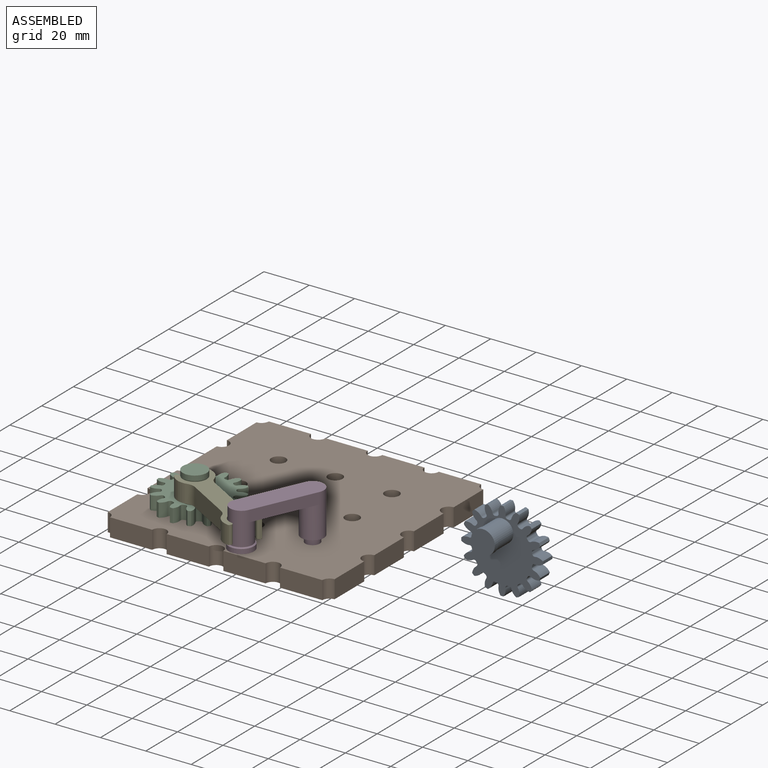
[diagram: assembled view]
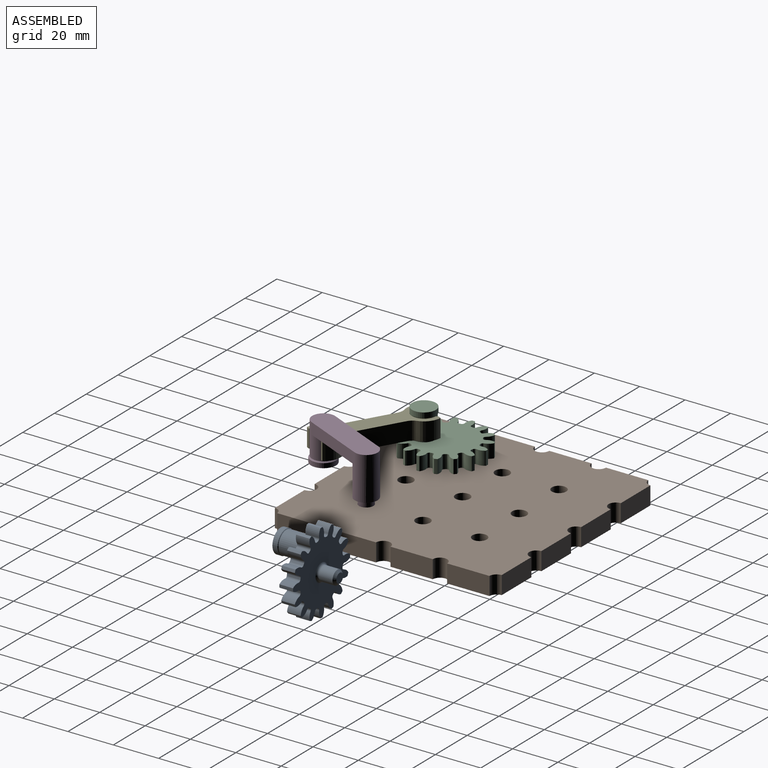
[diagram: assembled view, second angle]
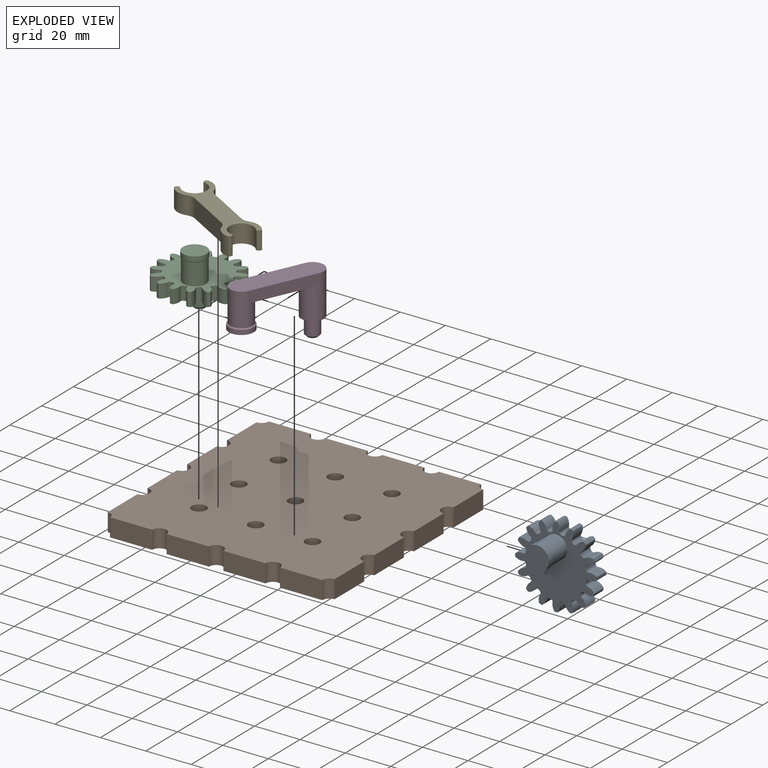
[diagram: exploded view]
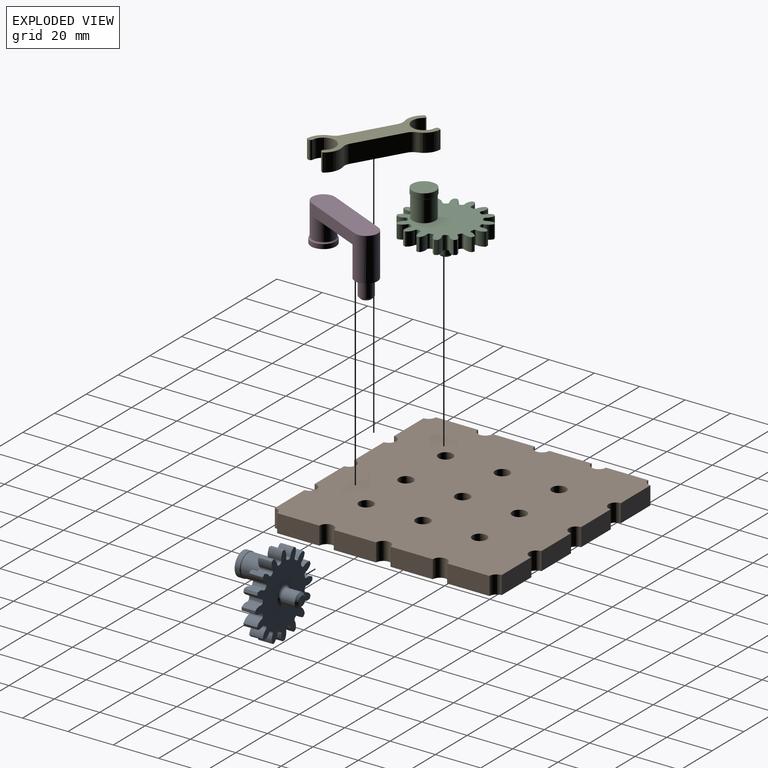
[diagram: exploded view, second angle]
ASSEMBLY  parts=5 mates=4
PART A: 106 faces, bbox 36x26x36 mm
  f0: cylinder r=13.5mm len=6mm, axis (0,1,0), area 3.6mm2, adj f16,f17,f22,f96
  f1: cylinder r=13.5mm len=6mm, axis (0,1,0), area 3.6mm2, adj f16,f17,f91,f97
  f2: cylinder r=13.5mm len=6mm, axis (0,1,0), area 3.6mm2, adj f16,f17,f86,f92
  f3: cylinder r=13.5mm len=6mm, axis (0,1,0), area 3.6mm2, adj f16,f17,f81,f87
  f4: cylinder r=13.5mm len=6mm, axis (0,1,0), area 3.6mm2, adj f16,f17,f76,f82
  f5: cylinder r=13.5mm len=6mm, axis (0,1,0), area 3.6mm2, adj f16,f17,f71,f77
  f6: cylinder r=13.5mm len=6mm, axis (0,1,0), area 3.6mm2, adj f16,f17,f66,f72
  f7: cylinder r=13.5mm len=6mm, axis (0,1,0), area 3.6mm2, adj f16,f17,f61,f67
  f8: cylinder r=13.5mm len=6mm, axis (0,1,0), area 3.6mm2, adj f16,f17,f56,f62
  f9: cylinder r=13.5mm len=6mm, axis (0,1,0), area 3.6mm2, adj f16,f17,f51,f57
  f10: cylinder r=13.5mm len=6mm, axis (0,1,0), area 3.6mm2, adj f16,f17,f46,f52
  f11: cylinder r=13.5mm len=6mm, axis (0,1,0), area 3.6mm2, adj f16,f17,f41,f47
  f12: cylinder r=13.5mm len=6mm, axis (0,1,0), area 3.6mm2, adj f16,f17,f36,f42
  f13: cylinder r=13.5mm len=6mm, axis (0,1,0), area 3.6mm2, adj f16,f17,f31,f37
  f14: cylinder r=13.5mm len=6mm, axis (0,1,0), area 3.6mm2, adj f16,f17,f26,f32
  f15: cylinder r=13.5mm len=6mm, axis (0,1,0), area 3.6mm2, adj f16,f17,f21,f27
  f16: plane 36x36mm, normal (0,-1,0), area 699.5mm2, adj f0,f1,f2,f3,f4,f5,f6,f7
  f17: plane 36x36mm, normal (0,1,0), area 724.6mm2, adj f0,f1,f2,f3,f4,f5,f6,f7
  f18: cylinder r=4.49mm len=6mm, axis (0,1,0), area 22.5mm2, adj f16,f17,f19,f22
  f19: cylinder r=18mm len=6mm, axis (0,1,0), area 7.7mm2, adj f16,f17,f18,f20
  f20: cylinder r=4.49mm len=6mm, axis (0,1,0), area 22.5mm2, adj f16,f17,f19,f21
  f21: cylinder r=1mm len=6mm, axis (0,1,0), area 9.4mm2, adj f15,f16,f17,f20
  f22: cylinder r=1mm len=6mm, axis (0,1,0), area 9.4mm2, adj f0,f16,f17,f18
  f23: cylinder r=4.49mm len=6mm, axis (0,1,0), area 22.5mm2, adj f16,f17,f24,f27
  f24: cylinder r=18mm len=6mm, axis (0,1,0), area 7.7mm2, adj f16,f17,f23,f25
  f25: cylinder r=4.49mm len=6mm, axis (0,1,0), area 22.5mm2, adj f16,f17,f24,f26
  f26: cylinder r=1mm len=6mm, axis (0,1,0), area 9.4mm2, adj f14,f16,f17,f25
  f27: cylinder r=1mm len=6mm, axis (0,1,0), area 9.4mm2, adj f15,f16,f17,f23
  f28: cylinder r=4.49mm len=6mm, axis (0,1,0), area 22.5mm2, adj f16,f17,f29,f32
  f29: cylinder r=18mm len=6mm, axis (0,1,0), area 7.7mm2, adj f16,f17,f28,f30
  f30: cylinder r=4.49mm len=6mm, axis (0,1,0), area 22.5mm2, adj f16,f17,f29,f31
  f31: cylinder r=1mm len=6mm, axis (0,1,0), area 9.4mm2, adj f13,f16,f17,f30
  f32: cylinder r=1mm len=6mm, axis (0,1,0), area 9.4mm2, adj f14,f16,f17,f28
  f33: cylinder r=4.49mm len=6mm, axis (0,1,0), area 22.5mm2, adj f16,f17,f34,f37
  f34: cylinder r=18mm len=6mm, axis (0,1,0), area 7.7mm2, adj f16,f17,f33,f35
  f35: cylinder r=4.49mm len=6mm, axis (0,1,0), area 22.5mm2, adj f16,f17,f34,f36
  f36: cylinder r=1mm len=6mm, axis (0,1,0), area 9.4mm2, adj f12,f16,f17,f35
  f37: cylinder r=1mm len=6mm, axis (0,1,0), area 9.4mm2, adj f13,f16,f17,f33
  f38: cylinder r=4.49mm len=6mm, axis (0,1,0), area 22.5mm2, adj f16,f17,f39,f42
  f39: cylinder r=18mm len=6mm, axis (0,1,0), area 7.7mm2, adj f16,f17,f38,f40
  f40: cylinder r=4.49mm len=6mm, axis (0,1,0), area 22.5mm2, adj f16,f17,f39,f41
  f41: cylinder r=1mm len=6mm, axis (0,1,0), area 9.4mm2, adj f11,f16,f17,f40
  f42: cylinder r=1mm len=6mm, axis (0,1,0), area 9.4mm2, adj f12,f16,f17,f38
  f43: cylinder r=4.49mm len=6mm, axis (0,1,0), area 22.5mm2, adj f16,f17,f44,f47
  f44: cylinder r=18mm len=6mm, axis (0,1,0), area 7.7mm2, adj f16,f17,f43,f45
  f45: cylinder r=4.49mm len=6mm, axis (0,1,0), area 22.5mm2, adj f16,f17,f44,f46
  f46: cylinder r=1mm len=6mm, axis (0,1,0), area 9.4mm2, adj f10,f16,f17,f45
  f47: cylinder r=1mm len=6mm, axis (0,1,0), area 9.4mm2, adj f11,f16,f17,f43
  f48: cylinder r=4.49mm len=6mm, axis (0,1,0), area 22.5mm2, adj f16,f17,f49,f52
  f49: cylinder r=18mm len=6mm, axis (0,1,0), area 7.7mm2, adj f16,f17,f48,f50
  f50: cylinder r=4.49mm len=6mm, axis (0,1,0), area 22.5mm2, adj f16,f17,f49,f51
  f51: cylinder r=1mm len=6mm, axis (0,1,0), area 9.4mm2, adj f9,f16,f17,f50
  f52: cylinder r=1mm len=6mm, axis (0,1,0), area 9.4mm2, adj f10,f16,f17,f48
  f53: cylinder r=4.49mm len=6mm, axis (0,1,0), area 22.5mm2, adj f16,f17,f54,f57
  f54: cylinder r=18mm len=6mm, axis (0,1,0), area 7.7mm2, adj f16,f17,f53,f55
  f55: cylinder r=4.49mm len=6mm, axis (0,1,0), area 22.5mm2, adj f16,f17,f54,f56
  f56: cylinder r=1mm len=6mm, axis (0,1,0), area 9.4mm2, adj f8,f16,f17,f55
  f57: cylinder r=1mm len=6mm, axis (0,1,0), area 9.4mm2, adj f9,f16,f17,f53
  f58: cylinder r=4.49mm len=6mm, axis (0,1,0), area 22.5mm2, adj f16,f17,f59,f62
  f59: cylinder r=18mm len=6mm, axis (0,1,0), area 7.7mm2, adj f16,f17,f58,f60
  f60: cylinder r=4.49mm len=6mm, axis (0,1,0), area 22.5mm2, adj f16,f17,f59,f61
  f61: cylinder r=1mm len=6mm, axis (0,1,0), area 9.4mm2, adj f7,f16,f17,f60
  f62: cylinder r=1mm len=6mm, axis (0,1,0), area 9.4mm2, adj f8,f16,f17,f58
  f63: cylinder r=4.49mm len=6mm, axis (0,1,0), area 22.5mm2, adj f16,f17,f64,f67
  f64: cylinder r=18mm len=6mm, axis (0,1,0), area 7.7mm2, adj f16,f17,f63,f65
  f65: cylinder r=4.49mm len=6mm, axis (0,1,0), area 22.5mm2, adj f16,f17,f64,f66
  f66: cylinder r=1mm len=6mm, axis (0,1,0), area 9.4mm2, adj f6,f16,f17,f65
  f67: cylinder r=1mm len=6mm, axis (0,1,0), area 9.4mm2, adj f7,f16,f17,f63
  f68: cylinder r=4.49mm len=6mm, axis (0,1,0), area 22.5mm2, adj f16,f17,f69,f72
  f69: cylinder r=18mm len=6mm, axis (0,1,0), area 7.7mm2, adj f16,f17,f68,f70
  f70: cylinder r=4.49mm len=6mm, axis (0,1,0), area 22.5mm2, adj f16,f17,f69,f71
  f71: cylinder r=1mm len=6mm, axis (0,1,0), area 9.4mm2, adj f5,f16,f17,f70
  f72: cylinder r=1mm len=6mm, axis (0,1,0), area 9.4mm2, adj f6,f16,f17,f68
  f73: cylinder r=4.49mm len=6mm, axis (0,1,0), area 22.5mm2, adj f16,f17,f74,f77
  f74: cylinder r=18mm len=6mm, axis (0,1,0), area 7.7mm2, adj f16,f17,f73,f75
  f75: cylinder r=4.49mm len=6mm, axis (0,1,0), area 22.5mm2, adj f16,f17,f74,f76
  f76: cylinder r=1mm len=6mm, axis (0,1,0), area 9.4mm2, adj f4,f16,f17,f75
  f77: cylinder r=1mm len=6mm, axis (0,1,0), area 9.4mm2, adj f5,f16,f17,f73
  f78: cylinder r=4.49mm len=6mm, axis (0,1,0), area 22.5mm2, adj f16,f17,f79,f82
  f79: cylinder r=18mm len=6mm, axis (0,1,0), area 7.7mm2, adj f16,f17,f78,f80
  f80: cylinder r=4.49mm len=6mm, axis (0,1,0), area 22.5mm2, adj f16,f17,f79,f81
  f81: cylinder r=1mm len=6mm, axis (0,1,0), area 9.4mm2, adj f3,f16,f17,f80
  f82: cylinder r=1mm len=6mm, axis (0,1,0), area 9.4mm2, adj f4,f16,f17,f78
  f83: cylinder r=4.49mm len=6mm, axis (0,1,0), area 22.5mm2, adj f16,f17,f84,f87
  f84: cylinder r=18mm len=6mm, axis (0,1,0), area 7.7mm2, adj f16,f17,f83,f85
  f85: cylinder r=4.49mm len=6mm, axis (0,1,0), area 22.5mm2, adj f16,f17,f84,f86
  f86: cylinder r=1mm len=6mm, axis (0,1,0), area 9.4mm2, adj f2,f16,f17,f85
  f87: cylinder r=1mm len=6mm, axis (0,1,0), area 9.4mm2, adj f3,f16,f17,f83
  f88: cylinder r=4.49mm len=6mm, axis (0,1,0), area 22.5mm2, adj f16,f17,f89,f92
  f89: cylinder r=18mm len=6mm, axis (0,1,0), area 7.7mm2, adj f16,f17,f88,f90
  f90: cylinder r=4.49mm len=6mm, axis (0,1,0), area 22.5mm2, adj f16,f17,f89,f91
  f91: cylinder r=1mm len=6mm, axis (0,1,0), area 9.4mm2, adj f1,f16,f17,f90
  f92: cylinder r=1mm len=6mm, axis (0,1,0), area 9.4mm2, adj f2,f16,f17,f88
  f93: cylinder r=4.49mm len=6mm, axis (0,1,0), area 22.5mm2, adj f16,f17,f94,f97
  f94: cylinder r=18mm len=6mm, axis (0,1,0), area 7.7mm2, adj f16,f17,f93,f95
  f95: cylinder r=4.49mm len=6mm, axis (0,1,0), area 22.5mm2, adj f16,f17,f94,f96
  f96: cylinder r=1mm len=6mm, axis (0,1,0), area 9.4mm2, adj f0,f16,f17,f95
  f97: cylinder r=1mm len=6mm, axis (0,1,0), area 9.4mm2, adj f1,f16,f17,f93
  f98: cylinder r=3.12mm len=6.25mm, axis (0,-1,0), area 117.8mm2, adj f100,f101
  f99: plane 4.25x4.25mm, normal (0,1,0), area 14.2mm2, adj f101
  f100: torus R=4.12mm, axis (0,-1,0), area 34.4mm2, adj f17,f98
  f101: cone r=2.12mm half-angle=45deg, axis (0,-1,0), area 23.3mm2, adj f98,f99
  f102: cylinder r=5mm len=10mm, axis (0,1,0), area 298.5mm2, adj f16,f105
  f103: cylinder r=5.25mm len=10.5mm, axis (0,1,0), area 74.2mm2, adj f104,f105
  f104: plane 10.5x10.5mm, normal (0,-1,0), area 86.6mm2, adj f103
  f105: cone r=5.5mm half-angle=45deg, axis (0,-1,0), area 11.4mm2, adj f102,f103
PART B: 43 faces, bbox 100x100x8 mm
  f0: cylinder r=3.17mm len=8mm, axis (0,0,-1), area 79.8mm2, adj f1,f39,f41,f42
  f1: plane 18.65x8mm, normal (0,-1,0), area 149.2mm2, adj f0,f2,f41,f42
  f2: cylinder r=3.17mm len=8mm, axis (0,0,-1), area 39.9mm2, adj f1,f3,f41,f42
  f3: plane 18.65x8mm, normal (1,0,0), area 149.2mm2, adj f2,f4,f41,f42
  f4: cylinder r=3.17mm len=8mm, axis (0,0,-1), area 79.8mm2, adj f3,f5,f41,f42
  f5: plane 18.65x8mm, normal (1,0,0), area 149.2mm2, adj f4,f6,f41,f42
  f6: cylinder r=3.17mm len=8mm, axis (0,0,-1), area 79.8mm2, adj f5,f7,f41,f42
  f7: plane 18.65x8mm, normal (1,0,0), area 149.2mm2, adj f6,f8,f41,f42
  f8: cylinder r=3.17mm len=8mm, axis (0,0,-1), area 79.8mm2, adj f7,f9,f41,f42
  f9: plane 18.65x8mm, normal (1,0,0), area 149.2mm2, adj f8,f10,f41,f42
  f10: cylinder r=3.17mm len=8mm, axis (0,0,-1), area 39.9mm2, adj f9,f11,f41,f42
  f11: plane 18.65x8mm, normal (0,1,0), area 149.2mm2, adj f10,f12,f41,f42
  f12: cylinder r=3.17mm len=8mm, axis (0,0,-1), area 79.8mm2, adj f11,f13,f41,f42
  f13: plane 18.65x8mm, normal (0,1,0), area 149.2mm2, adj f12,f14,f41,f42
  f14: cylinder r=3.17mm len=8mm, axis (0,0,-1), area 79.8mm2, adj f13,f15,f41,f42
  f15: plane 18.65x8mm, normal (0,1,0), area 149.2mm2, adj f14,f16,f41,f42
  f16: cylinder r=3.17mm len=8mm, axis (0,0,-1), area 79.8mm2, adj f15,f17,f41,f42
  f17: plane 18.65x8mm, normal (0,1,0), area 149.2mm2, adj f16,f18,f41,f42
  f18: cylinder r=3.17mm len=8mm, axis (0,0,-1), area 39.9mm2, adj f17,f19,f41,f42
  f19: plane 18.65x8mm, normal (-1,0,0), area 149.2mm2, adj f18,f20,f41,f42
  f20: cylinder r=3.17mm len=8mm, axis (0,0,-1), area 79.8mm2, adj f19,f21,f41,f42
  f21: plane 18.65x8mm, normal (-1,0,0), area 149.2mm2, adj f20,f22,f41,f42
  f22: cylinder r=3.17mm len=8mm, axis (0,0,-1), area 79.8mm2, adj f21,f23,f41,f42
  f23: plane 18.65x8mm, normal (-1,0,0), area 149.2mm2, adj f22,f24,f41,f42
  f24: cylinder r=3.17mm len=8mm, axis (0,0,-1), area 79.8mm2, adj f23,f25,f41,f42
  f25: plane 18.65x8mm, normal (-1,0,0), area 149.2mm2, adj f24,f26,f41,f42
  f26: cylinder r=3.17mm len=8mm, axis (0,0,-1), area 39.9mm2, adj f25,f27,f41,f42
  f27: plane 18.65x8mm, normal (0,-1,0), area 149.2mm2, adj f26,f28,f41,f42
  f28: cylinder r=3.17mm len=8mm, axis (0,0,-1), area 79.8mm2, adj f27,f29,f41,f42
  f29: plane 18.65x8mm, normal (0,-1,0), area 149.2mm2, adj f28,f30,f41,f42
  f30: cylinder r=3.17mm len=8mm, axis (0,0,-1), area 79.8mm2, adj f29,f39,f41,f42
  f31: cylinder r=3.17mm len=8mm, axis (0,0,-1), area 159.6mm2, adj f41,f42
  f32: cylinder r=3.17mm len=8mm, axis (0,0,-1), area 159.6mm2, adj f41,f42
  f33: cylinder r=3.17mm len=8mm, axis (0,0,-1), area 159.6mm2, adj f41,f42
  f34: cylinder r=3.17mm len=8mm, axis (0,0,-1), area 159.6mm2, adj f41,f42
  f35: cylinder r=3.17mm len=8mm, axis (0,0,-1), area 159.6mm2, adj f41,f42
  f36: cylinder r=3.17mm len=8mm, axis (0,0,-1), area 159.6mm2, adj f41,f42
  f37: cylinder r=3.17mm len=8mm, axis (0,0,-1), area 159.6mm2, adj f41,f42
  f38: cylinder r=3.17mm len=8mm, axis (0,0,-1), area 159.6mm2, adj f41,f42
  f39: plane 18.65x8mm, normal (0,-1,0), area 149.2mm2, adj f0,f30,f41,f42
  f40: cylinder r=3.17mm len=8mm, axis (0,0,-1), area 159.6mm2, adj f41,f42
  f41: plane 100x100mm, normal (0,0,1), area 9493.3mm2, adj f0,f1,f2,f3,f4,f5,f6,f7
  f42: plane 100x100mm, normal (0,0,-1), area 9493.3mm2, adj f0,f1,f2,f3,f4,f5,f6,f7
PART C: same geometry as A
PART D: 14 faces, bbox 25.3x27x36.6 mm
  f0: cylinder r=5mm len=14.5mm, axis (0,-1,0), area 377mm2, adj f1,f2,f4,f5,f9
  f1: plane 31.03x23.49mm, normal (0,1,0), area 221.5mm2, adj f0,f2,f3,f4
  f2: plane 26.1x14.79mm, normal (-0.87,0,-0.49), area 150mm2, adj f0,f1,f3,f5
  f3: cylinder r=5mm len=19mm, axis (0,1,0), area 518.4mm2, adj f1,f2,f4,f5,f6
  f4: plane 26.1x14.79mm, normal (0.87,0,0.49), area 150mm2, adj f0,f1,f3,f5
  f5: plane 36.1x24.79mm, normal (0,-1,0), area 378.5mm2, adj f0,f2,f3,f4
  f6: plane 10x10mm, normal (0,1,0), area 25.1mm2, adj f3,f12
  f7: cylinder r=5.5mm len=11mm, axis (0,-1,0), area 69.1mm2, adj f8,f9
  f8: plane 11x11mm, normal (0,1,0), area 95mm2, adj f7
  f9: cone r=5mm half-angle=45deg, axis (0,1,0), area 23.3mm2, adj f0,f7
  f10: cylinder r=3.12mm len=6.25mm, axis (0,-1,0), area 117.8mm2, adj f12,f13
  f11: plane 4.25x4.25mm, normal (0,1,0), area 14.2mm2, adj f13
  f12: torus R=4.12mm, axis (0,-1,0), area 34.4mm2, adj f6,f10
  f13: cone r=2.12mm half-angle=45deg, axis (0,-1,0), area 23.3mm2, adj f10,f11
PART E: 22 faces, bbox 42.6x8x42.6 mm
  f0: cylinder r=7.5mm len=8mm, axis (0,1,0), area 75.2mm2, adj f15,f16,f17,f21
  f1: plane 16.02x16.02mm, normal (0.71,0,-0.71), area 181.2mm2, adj f16,f17,f18,f21
  f2: cylinder r=7.5mm len=8mm, axis (0,1,0), area 75.2mm2, adj f3,f16,f17,f18
  f3: plane 8x0.64mm, normal (0.71,0,0.71), area 7.2mm2, adj f2,f4,f16,f17
  f4: cylinder r=1mm len=8mm, axis (0,1,0), area 15.9mm2, adj f3,f5,f16,f17
  f5: cylinder r=5.25mm len=10.14mm, axis (0,1,0), area 166.5mm2, adj f4,f6,f16,f17
  f6: cylinder r=1mm len=8mm, axis (0,1,0), area 15.9mm2, adj f5,f7,f16,f17
  f7: plane 8x0.64mm, normal (0.71,0,0.71), area 7.2mm2, adj f6,f8,f16,f17
  f8: cylinder r=7.5mm len=8mm, axis (0,1,0), area 75.2mm2, adj f7,f16,f17,f19
  f9: plane 16.02x16.02mm, normal (-0.71,0,0.71), area 181.2mm2, adj f16,f17,f19,f20
  f10: cylinder r=7.5mm len=8mm, axis (0,1,0), area 75.2mm2, adj f11,f16,f17,f20
  f11: plane 8x0.64mm, normal (-0.71,0,-0.71), area 7.2mm2, adj f10,f12,f16,f17
  f12: cylinder r=1mm len=8mm, axis (0,1,0), area 15.9mm2, adj f11,f13,f16,f17
  f13: cylinder r=5.25mm len=10.14mm, axis (0,1,0), area 166.5mm2, adj f12,f14,f16,f17
  f14: cylinder r=1mm len=8mm, axis (0,1,0), area 15.9mm2, adj f13,f15,f16,f17
  f15: plane 8x0.64mm, normal (-0.71,0,-0.71), area 7.2mm2, adj f0,f14,f16,f17
  f16: plane 42.62x42.62mm, normal (0,-1,0), area 329.5mm2, adj f0,f1,f2,f3,f4,f5,f6,f7
  f17: plane 42.62x42.62mm, normal (0,1,0), area 329.5mm2, adj f0,f1,f2,f3,f4,f5,f6,f7
  f18: cylinder r=5mm len=8mm, axis (0,1,0), area 30.7mm2, adj f1,f2,f16,f17
  f19: cylinder r=5mm len=8mm, axis (0,1,0), area 30.7mm2, adj f8,f9,f16,f17
  f20: cylinder r=5mm len=8mm, axis (0,1,0), area 30.7mm2, adj f9,f10,f16,f17
  f21: cylinder r=5mm len=8mm, axis (0,1,0), area 30.7mm2, adj f0,f1,f16,f17
PLACE A t=(93.14,0,14.06)mm
PLACE B at identity fixed
PLACE C rot(axis=(-0.15,0.7,-0.7),163.4deg) t=(-25,-25,12)mm
PLACE D rot(axis=(-0.34,-0.67,0.67),142.9deg) t=(58.79,-53.59,13.75)mm
PLACE E rot(axis=(0.98,0.13,0.13),91deg) t=(-23.86,-24.6,27.5)mm
MATE revolute E.f13 <-> C.f102  axis (0,0,1) through (-21.81,-32.33,24.5)mm
MATE cylindrical D.f3 <-> B.f38  axis (0,0,-1) through (25,-25,2.75)mm
MATE revolute C.f98 <-> B.f32  axis (0,0,1) through (-25,-25,8)mm
MATE revolute E.f2 <-> D.f0  axis (0,0,1) through (12.79,-52.4,24.5)mm
